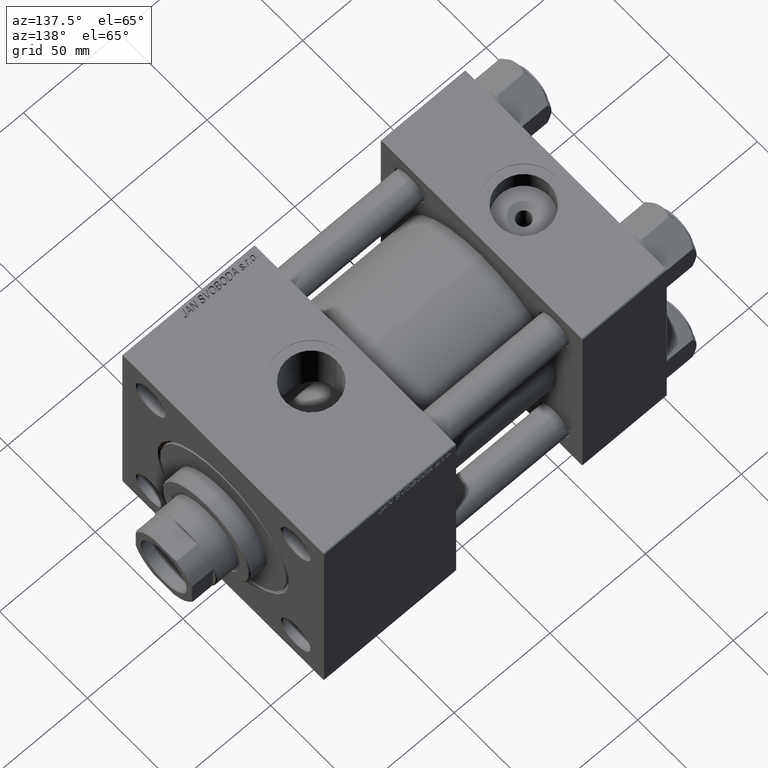
[diagram: clean part render]
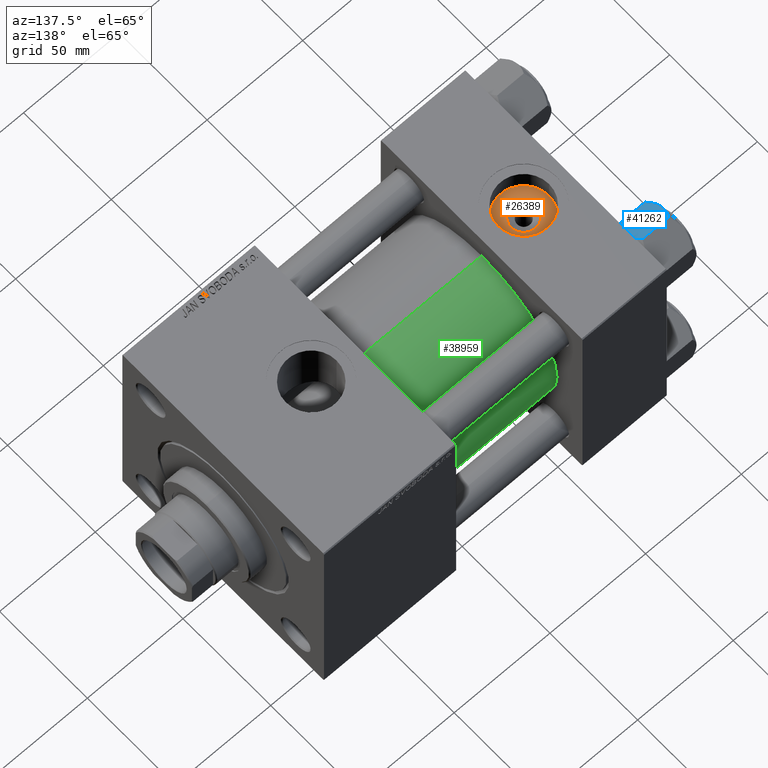
[diagram: same view with three faces highlighted in distinct colors, each labeled with its STEP entity id]
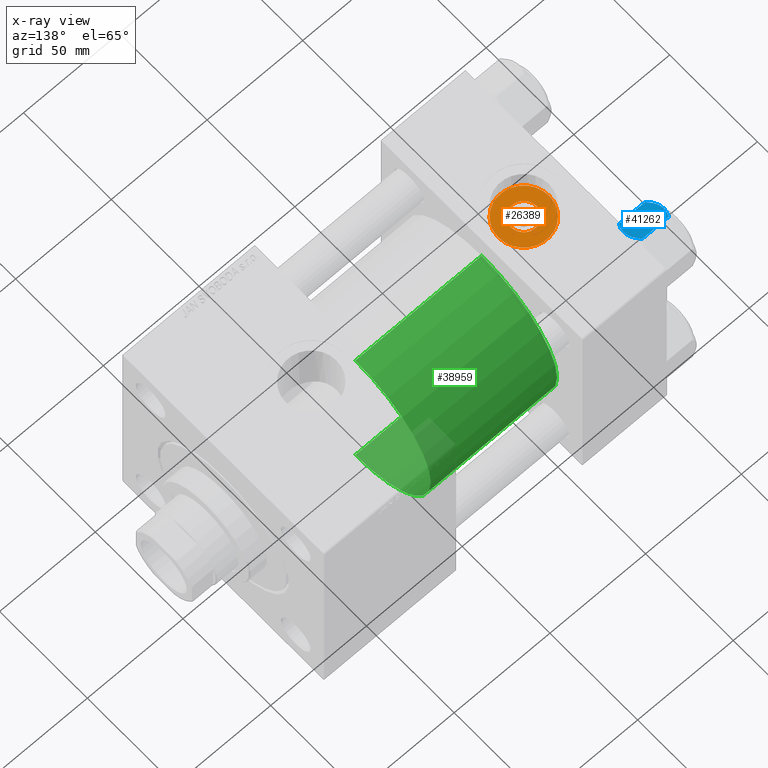
[diagram: x-ray of the same camera — body ghosted, the three highlighted faces saturated]
A machine part, auxiliary view with three faces highlighted in distinct colors.
The next image is the same camera in x-ray (body ghosted, the three faces saturated) — at least one of them is partly hidden behind the body in this view.
Their STEP definitions:

[orange] entity #26389 — the highlighted planar face has unit normal (0, 0, 1).
#1084 = VERTEX_POINT ( 'NONE', #40555 ) ;
#5213 = CARTESIAN_POINT ( 'NONE',  ( 22.00000000000000000, -8.673617379884035472E-15, 46.70000000000000284 ) ) ;
#6455 = EDGE_CURVE ( 'NONE', #48969, #1084, #8358, .T. ) ;
#8358 = CIRCLE ( 'NONE', #50050, 13.22000000000000242 ) ;
#9282 = VERTEX_POINT ( 'NONE', #39625 ) ;
#9893 = CARTESIAN_POINT ( 'NONE',  ( 28.64000000000006096, -8.673617379884035472E-15, 46.70000000000000284 ) ) ;
#10525 = DIRECTION ( 'NONE',  ( 0.000000000000000000, 0.000000000000000000, 1.000000000000000000 ) ) ;
#11581 = ORIENTED_EDGE ( 'NONE', *, *, #25114, .T. ) ;
#12621 = DIRECTION ( 'NONE',  ( -0.000000000000000000, -0.000000000000000000, -1.000000000000000000 ) ) ;
#19298 = CIRCLE ( 'NONE', #38080, 13.22000000000000242 ) ;
#19529 = ORIENTED_EDGE ( 'NONE', *, *, #35854, .T. ) ;
#20878 = EDGE_CURVE ( 'NONE', #1084, #48969, #19298, .T. ) ;
#21511 = FACE_BOUND ( 'NONE', #29384, .T. ) ;
#21755 = DIRECTION ( 'NONE',  ( 1.000000000000000000, 0.000000000000000000, -0.000000000000000000 ) ) ;
#23717 = EDGE_LOOP ( 'NONE', ( #26889, #38781 ) ) ;
#24432 = DIRECTION ( 'NONE',  ( 1.000000000000000000, 0.000000000000000000, 0.000000000000000000 ) ) ;
#24841 = DIRECTION ( 'NONE',  ( 1.000000000000000000, 0.000000000000000000, 0.000000000000000000 ) ) ;
#25095 = CARTESIAN_POINT ( 'NONE',  ( 22.00000000000000000, -8.673617379884035472E-15, 46.70000000000000284 ) ) ;
#25114 = EDGE_CURVE ( 'NONE', #9282, #50049, #47970, .T. ) ;
#25386 = DIRECTION ( 'NONE',  ( 1.000000000000000000, 0.000000000000000000, 0.000000000000000000 ) ) ;
#26374 = CARTESIAN_POINT ( 'NONE',  ( 22.00000000000000000, -8.673617379884035472E-15, 46.70000000000000284 ) ) ;
#26389 = ADVANCED_FACE ( 'NONE', ( #21511, #33773 ), #45809, .T. ) ;
#26889 = ORIENTED_EDGE ( 'NONE', *, *, #6455, .T. ) ;
#28223 = CARTESIAN_POINT ( 'NONE',  ( 22.00000000000000000, -8.673617379884035472E-15, 46.70000000000000284 ) ) ;
#29384 = EDGE_LOOP ( 'NONE', ( #19529, #11581 ) ) ;
#33773 = FACE_OUTER_BOUND ( 'NONE', #23717, .T. ) ;
#34017 = AXIS2_PLACEMENT_3D ( 'NONE', #28223, #12621, #48468 ) ;
#34212 = CARTESIAN_POINT ( 'NONE',  ( 35.21999999999999886, -8.673617379884035472E-15, 46.70000000000000284 ) ) ;
#35716 = AXIS2_PLACEMENT_3D ( 'NONE', #49409, #41216, #21755 ) ;
#35854 = EDGE_CURVE ( 'NONE', #50049, #9282, #44697, .T. ) ;
#36110 = DIRECTION ( 'NONE',  ( -0.000000000000000000, -0.000000000000000000, -1.000000000000000000 ) ) ;
#38080 = AXIS2_PLACEMENT_3D ( 'NONE', #26374, #10525, #25386 ) ;
#38781 = ORIENTED_EDGE ( 'NONE', *, *, #20878, .T. ) ;
#39625 = CARTESIAN_POINT ( 'NONE',  ( 15.35999999999993548, -7.860451905250184685E-15, 46.70000000000000284 ) ) ;
#40555 = CARTESIAN_POINT ( 'NONE',  ( 8.779999999999994031, -7.054634311411234321E-15, 46.70000000000000284 ) ) ;
#41216 = DIRECTION ( 'NONE',  ( 0.000000000000000000, 0.000000000000000000, 1.000000000000000000 ) ) ;
#43055 = AXIS2_PLACEMENT_3D ( 'NONE', #25095, #36110, #24841 ) ;
#44697 = CIRCLE ( 'NONE', #43055, 6.640000000000062741 ) ;
#45809 = PLANE ( 'NONE',  #35716 ) ;
#47970 = CIRCLE ( 'NONE', #34017, 6.640000000000062741 ) ;
#47986 = DIRECTION ( 'NONE',  ( 0.000000000000000000, 0.000000000000000000, 1.000000000000000000 ) ) ;
#48468 = DIRECTION ( 'NONE',  ( 1.000000000000000000, 0.000000000000000000, 0.000000000000000000 ) ) ;
#48969 = VERTEX_POINT ( 'NONE', #34212 ) ;
#49409 = CARTESIAN_POINT ( 'NONE',  ( 22.00000000000000000, -8.673617379884035472E-15, 46.70000000000000284 ) ) ;
#50049 = VERTEX_POINT ( 'NONE', #9893 ) ;
#50050 = AXIS2_PLACEMENT_3D ( 'NONE', #5213, #47986, #24432 ) ;

[blue] entity #41262 — the highlighted planar face has unit normal (-0, 0.5, -0.866).
#446 = CARTESIAN_POINT ( 'NONE',  ( 15.52647173767732980, -0.1619957022865074481, -2.000000000000000000 ) ) ;
#1268 = CARTESIAN_POINT ( 'NONE',  ( 14.31545111198821019, -2.259544954993912391, -17.08577173959730544 ) ) ;
#1336 = ORIENTED_EDGE ( 'NONE', *, *, #39264, .F. ) ;
#1543 = CARTESIAN_POINT ( 'NONE',  ( 14.30591678195076355, -2.276058899034900662, -0.9473872146228133895 ) ) ;
#1723 = CARTESIAN_POINT ( 'NONE',  ( 11.04378428799594936, -7.926238119586006547, -0.05089381635301404999 ) ) ;
#1939 = DIRECTION ( 'NONE',  ( -0.000000000000000000, -0.000000000000000000, 1.000000000000000000 ) ) ;
#3257 = DIRECTION ( 'NONE',  ( -0.8660254037844385966, 0.5000000000000003331, 0.000000000000000000 ) ) ;
#4788 = VERTEX_POINT ( 'NONE', #38975 ) ;
#4986 = VERTEX_POINT ( 'NONE', #13024 ) ;
#5560 = CARTESIAN_POINT ( 'NONE',  ( 9.114548888011784200, -11.26777185211904353, -0.9142282604026938930 ) ) ;
#5802 = CARTESIAN_POINT ( 'NONE',  ( 7.903528262322685904, -13.36532110482641400, -16.00000000000000000 ) ) ;
#5878 = CARTESIAN_POINT ( 'NONE',  ( 12.37702203890362540, -5.617002596445055396, 1.097754699641572845E-15 ) ) ;
#5919 = B_SPLINE_CURVE_WITH_KNOTS ( 'NONE', 3,
 ( #19060, #11138, #15232, #25747, #38017, #10889, #49307, #30842 ),
 .UNSPECIFIED., .F., .F.,
 ( 4, 2, 2, 4 ),
 ( 0.007890825462474406610, 0.01181022244528550855, 0.01376992093669106125, 0.01572961942809661395 ),
 .UNSPECIFIED. ) ;
#5931 = ORIENTED_EDGE ( 'NONE', *, *, #23988, .F. ) ;
#6778 = LINE ( 'NONE', #34674, #12698 ) ;
#7046 = EDGE_CURVE ( 'NONE', #47781, #9503, #5919, .T. ) ;
#7096 = LINE ( 'NONE', #35451, #43159 ) ;
#8958 = CARTESIAN_POINT ( 'NONE',  ( 15.52647173767731736, -0.1619957022865265162, -16.00000000000000000 ) ) ;
#9221 = CARTESIAN_POINT ( 'NONE',  ( 11.71500000000000341, -6.763658403556471299, 0.000000000000000000 ) ) ;
#9503 = VERTEX_POINT ( 'NONE', #5802 ) ;
#10442 = VECTOR ( 'NONE', #28947, 1000.000000000000114 ) ;
#10889 = CARTESIAN_POINT ( 'NONE',  ( 8.506059550806629233, -12.32170630002228684, -16.56553707812499709 ) ) ;
#10977 = CARTESIAN_POINT ( 'NONE',  ( 7.903528262322674358, -13.36532110482643176, -2.000000000000000000 ) ) ;
#11125 = DIRECTION ( 'NONE',  ( -0.5000000000000002220, -0.8660254037844384856, 0.000000000000000000 ) ) ;
#11138 = CARTESIAN_POINT ( 'NONE',  ( 11.05297796109638142, -7.910314210667883650, -17.99999999999999289 ) ) ;
#11442 = EDGE_LOOP ( 'NONE', ( #48331, #44080, #5931, #47942, #15064, #1336, #33290, #41447, #41042, #29758 ) ) ;
#11919 = CARTESIAN_POINT ( 'NONE',  ( 15.62000000000000455, -1.379485931020374819E-15, -16.00000000000000000 ) ) ;
#12155 = DIRECTION ( 'NONE',  ( -0.5000000000000002220, -0.8660254037844384856, 0.000000000000000000 ) ) ;
#12698 = VECTOR ( 'NONE', #11125, 1000.000000000000114 ) ;
#13024 = CARTESIAN_POINT ( 'NONE',  ( 11.71500000000000341, -6.763658403556471299, 0.000000000000000000 ) ) ;
#15064 = ORIENTED_EDGE ( 'NONE', *, *, #36204, .F. ) ;
#15228 = B_SPLINE_CURVE_WITH_KNOTS ( 'NONE', 3,
 ( #40634, #20676, #5560, #32452, #28858, #1723, #17329, #36301 ),
 .UNSPECIFIED., .F., .F.,
 ( 4, 2, 2, 4 ),
 ( 4.472842641876105202E-07, 0.003945636373369308322, 0.005918230917921867007, 0.007890825462474425692 ),
 .UNSPECIFIED. ) ;
#15232 = CARTESIAN_POINT ( 'NONE',  ( 10.40215497533437627, -9.037572688741342120, -17.80281335400753662 ) ) ;
#15917 = B_SPLINE_CURVE_WITH_KNOTS ( 'NONE', 3,
 ( #9221, #5878, #17144, #40954, #1543, #24344, #39947, #28922 ),
 .UNSPECIFIED., .F., .F.,
 ( 4, 2, 2, 4 ),
 ( 0.007890825462474425692, 0.01181022244528553977, 0.01376992093669109768, 0.01572961942809665559 ),
 .UNSPECIFIED. ) ;
#16636 = CARTESIAN_POINT ( 'NONE',  ( 11.71499999999999453, -6.763658403556466858, -18.00000000000000000 ) ) ;
#17144 = CARTESIAN_POINT ( 'NONE',  ( 13.02784502466562699, -4.489744118371590709, -0.1971866459924545845 ) ) ;
#17329 = CARTESIAN_POINT ( 'NONE',  ( 11.38181071908714515, -7.340759166634874155, 7.741881137904304113E-16 ) ) ;
#18418 = EDGE_CURVE ( 'NONE', #9503, #50308, #6778, .T. ) ;
#18421 = CARTESIAN_POINT ( 'NONE',  ( 15.62000000000000455, -1.379485931020374819E-15, -1.999999999999998224 ) ) ;
#19060 = CARTESIAN_POINT ( 'NONE',  ( 11.71499999999999453, -6.763658403556466858, -18.00000000000000000 ) ) ;
#20662 = VERTEX_POINT ( 'NONE', #446 ) ;
#20676 = CARTESIAN_POINT ( 'NONE',  ( 8.502393313253756801, -12.32805640973649197, -1.411989271640069044 ) ) ;
#22460 = PLANE ( 'NONE',  #48135 ) ;
#22535 = DIRECTION ( 'NONE',  ( -0.000000000000000000, -0.000000000000000000, 1.000000000000000000 ) ) ;
#22631 = EDGE_CURVE ( 'NONE', #50308, #4788, #37016, .T. ) ;
#22767 = CARTESIAN_POINT ( 'NONE',  ( 15.62000000000000455, -1.379485931020374819E-15, -1.999999999999998224 ) ) ;
#22905 = VERTEX_POINT ( 'NONE', #41040 ) ;
#23272 = CARTESIAN_POINT ( 'NONE',  ( 15.62000000000000455, -1.379485931020374819E-15, -1.999999999999998224 ) ) ;
#23988 = EDGE_CURVE ( 'NONE', #20662, #36884, #38131, .T. ) ;
#24328 = CARTESIAN_POINT ( 'NONE',  ( 13.36540581434586983, -3.905071680002335288, -17.61639331488792948 ) ) ;
#24344 = CARTESIAN_POINT ( 'NONE',  ( 14.92394044919338292, -1.205610507090636219, -1.434462921875003349 ) ) ;
#25331 = CARTESIAN_POINT ( 'NONE',  ( 11.71499999999999453, -6.763658403556466858, -18.00000000000000000 ) ) ;
#25747 = CARTESIAN_POINT ( 'NONE',  ( 9.439480280627268627, -10.70497417113491245, -17.26828031537187513 ) ) ;
#25810 = CARTESIAN_POINT ( 'NONE',  ( 15.62000000000000455, -1.379485931020374819E-15, -18.00000000000000000 ) ) ;
#26299 = DIRECTION ( 'NONE',  ( -0.5000000000000002220, -0.8660254037844384856, 0.000000000000000000 ) ) ;
#26384 = LINE ( 'NONE', #34325, #26591 ) ;
#26591 = VECTOR ( 'NONE', #22535, 1000.000000000000000 ) ;
#27276 = VERTEX_POINT ( 'NONE', #10977 ) ;
#28858 = CARTESIAN_POINT ( 'NONE',  ( 10.38662926516871998, -9.064464007571853443, -0.2430846701012968625 ) ) ;
#28922 = CARTESIAN_POINT ( 'NONE',  ( 15.52647173767732980, -0.1619957022865074481, -2.000000000000000000 ) ) ;
#28947 = DIRECTION ( 'NONE',  ( 0.5000000000000002220, 0.8660254037844384856, -0.000000000000000000 ) ) ;
#29758 = ORIENTED_EDGE ( 'NONE', *, *, #30094, .F. ) ;
#30094 = EDGE_CURVE ( 'NONE', #22905, #47781, #39090, .T. ) ;
#30842 = CARTESIAN_POINT ( 'NONE',  ( 7.903528262322685904, -13.36532110482641400, -16.00000000000000000 ) ) ;
#31545 = VECTOR ( 'NONE', #49669, 1000.000000000000114 ) ;
#32160 = CARTESIAN_POINT ( 'NONE',  ( 7.810000000000002274, -13.52731680711293372, -18.00000000000000000 ) ) ;
#32452 = CARTESIAN_POINT ( 'NONE',  ( 10.06459418565412456, -9.622245127110611307, -0.3836066851120584209 ) ) ;
#33001 = CARTESIAN_POINT ( 'NONE',  ( 13.04337073483127796, -4.462852799541095372, -17.75691532989869614 ) ) ;
#33066 = EDGE_CURVE ( 'NONE', #50067, #36884, #26384, .T. ) ;
#33290 = ORIENTED_EDGE ( 'NONE', *, *, #22631, .F. ) ;
#34325 = CARTESIAN_POINT ( 'NONE',  ( 15.62000000000000455, -1.379485931020374819E-15, -18.00000000000000000 ) ) ;
#34674 = CARTESIAN_POINT ( 'NONE',  ( 15.62000000000000455, -1.379485931020374819E-15, -16.00000000000000000 ) ) ;
#35451 = CARTESIAN_POINT ( 'NONE',  ( 15.62000000000000455, -1.379485931020374819E-15, -16.00000000000000000 ) ) ;
#35853 = EDGE_CURVE ( 'NONE', #4986, #20662, #15917, .T. ) ;
#36204 = EDGE_CURVE ( 'NONE', #27276, #4986, #15228, .T. ) ;
#36301 = CARTESIAN_POINT ( 'NONE',  ( 11.71500000000000341, -6.763658403556471299, 0.000000000000000000 ) ) ;
#36884 = VERTEX_POINT ( 'NONE', #23272 ) ;
#37016 = LINE ( 'NONE', #32160, #44707 ) ;
#38017 = CARTESIAN_POINT ( 'NONE',  ( 9.124083218049248600, -11.25125790807802595, -17.05261278537718184 ) ) ;
#38131 = LINE ( 'NONE', #22767, #31545 ) ;
#38699 = EDGE_CURVE ( 'NONE', #50067, #22905, #7096, .T. ) ;
#38975 = CARTESIAN_POINT ( 'NONE',  ( 7.810000000000002274, -13.52731680711293372, -1.999999999999998224 ) ) ;
#39090 = B_SPLINE_CURVE_WITH_KNOTS ( 'NONE', 3,
 ( #8958, #44531, #1268, #24328, #33001, #40430, #44035, #25331 ),
 .UNSPECIFIED., .F., .F.,
 ( 4, 2, 2, 4 ),
 ( 4.472842641925296111E-07, 0.003945636373369297914, 0.005918230917921852262, 0.007890825462474406610 ),
 .UNSPECIFIED. ) ;
#39264 = EDGE_CURVE ( 'NONE', #4788, #27276, #45579, .T. ) ;
#39947 = CARTESIAN_POINT ( 'NONE',  ( 15.22736220980736022, -0.6800686015852294153, -1.706311779141445495 ) ) ;
#40430 = CARTESIAN_POINT ( 'NONE',  ( 12.38621571200405214, -5.601078687526937827, -17.94910618364697186 ) ) ;
#40634 = CARTESIAN_POINT ( 'NONE',  ( 7.903528262322674358, -13.36532110482643176, -2.000000000000000000 ) ) ;
#40954 = CARTESIAN_POINT ( 'NONE',  ( 13.99051971937274352, -2.822342635978011938, -0.7317196846281139866 ) ) ;
#41040 = CARTESIAN_POINT ( 'NONE',  ( 15.52647173767731736, -0.1619957022865265162, -16.00000000000000000 ) ) ;
#41042 = ORIENTED_EDGE ( 'NONE', *, *, #7046, .F. ) ;
#41262 = ADVANCED_FACE ( 'NONE', ( #48621 ), #22460, .F. ) ;
#41447 = ORIENTED_EDGE ( 'NONE', *, *, #18418, .F. ) ;
#43159 = VECTOR ( 'NONE', #12155, 1000.000000000000114 ) ;
#44035 = CARTESIAN_POINT ( 'NONE',  ( 12.04818928091285635, -6.186557640478069331, -17.99999999999998224 ) ) ;
#44080 = ORIENTED_EDGE ( 'NONE', *, *, #33066, .T. ) ;
#44531 = CARTESIAN_POINT ( 'NONE',  ( 14.92760668674624291, -1.199260397376471499, -16.58801072835992940 ) ) ;
#44707 = VECTOR ( 'NONE', #1939, 1000.000000000000000 ) ;
#44908 = CARTESIAN_POINT ( 'NONE',  ( 7.810000000000002274, -13.52731680711293372, -16.00000000000000000 ) ) ;
#45579 = LINE ( 'NONE', #18421, #10442 ) ;
#47781 = VERTEX_POINT ( 'NONE', #16636 ) ;
#47942 = ORIENTED_EDGE ( 'NONE', *, *, #35853, .F. ) ;
#48135 = AXIS2_PLACEMENT_3D ( 'NONE', #25810, #3257, #26299 ) ;
#48331 = ORIENTED_EDGE ( 'NONE', *, *, #38699, .F. ) ;
#48621 = FACE_OUTER_BOUND ( 'NONE', #11442, .T. ) ;
#49307 = CARTESIAN_POINT ( 'NONE',  ( 8.202637790192655487, -12.84724820552769309, -16.29368822085855584 ) ) ;
#49669 = DIRECTION ( 'NONE',  ( 0.5000000000000002220, 0.8660254037844384856, -0.000000000000000000 ) ) ;
#50067 = VERTEX_POINT ( 'NONE', #11919 ) ;
#50308 = VERTEX_POINT ( 'NONE', #44908 ) ;

[green] entity #38959 — the highlighted cylindrical surface (partial cylindrical patch) has radius 43 mm, axis along (-1, -0, -0).
#255 = CARTESIAN_POINT ( 'NONE',  ( 110.0000000000000000, -2.602085213965210642E-15, 0.000000000000000000 ) ) ;
#1045 = VERTEX_POINT ( 'NONE', #48256 ) ;
#2214 = EDGE_CURVE ( 'NONE', #1045, #27559, #42551, .T. ) ;
#3937 = CARTESIAN_POINT ( 'NONE',  ( 44.00000000000000000, -2.602085213965210642E-15, 43.00000000000000000 ) ) ;
#4061 = LINE ( 'NONE', #12257, #11168 ) ;
#4918 = CARTESIAN_POINT ( 'NONE',  ( 110.0000000000000000, 2.663896022368408223E-15, -43.00000000000000000 ) ) ;
#8018 = VERTEX_POINT ( 'NONE', #4918 ) ;
#8188 = DIRECTION ( 'NONE',  ( 0.000000000000000000, 0.000000000000000000, -1.000000000000000000 ) ) ;
#8905 = AXIS2_PLACEMENT_3D ( 'NONE', #255, #15866, #8188 ) ;
#10062 = CYLINDRICAL_SURFACE ( 'NONE', #44799, 43.00000000000000000 ) ;
#11168 = VECTOR ( 'NONE', #26852, 1000.000000000000000 ) ;
#12257 = CARTESIAN_POINT ( 'NONE',  ( 110.0000000000000000, 2.663896022368408223E-15, -43.00000000000000000 ) ) ;
#12881 = DIRECTION ( 'NONE',  ( 0.000000000000000000, 0.000000000000000000, 1.000000000000000000 ) ) ;
#13141 = CARTESIAN_POINT ( 'NONE',  ( 110.0000000000000000, -2.602085213965210642E-15, 43.00000000000000000 ) ) ;
#13705 = ORIENTED_EDGE ( 'NONE', *, *, #15476, .F. ) ;
#14596 = CIRCLE ( 'NONE', #8905, 43.00000000000000000 ) ;
#15476 = EDGE_CURVE ( 'NONE', #16187, #27559, #16220, .T. ) ;
#15692 = ORIENTED_EDGE ( 'NONE', *, *, #41160, .F. ) ;
#15866 = DIRECTION ( 'NONE',  ( 1.000000000000000000, 0.000000000000000000, 0.000000000000000000 ) ) ;
#16187 = VERTEX_POINT ( 'NONE', #32636 ) ;
#16220 = LINE ( 'NONE', #13141, #34657 ) ;
#19487 = EDGE_LOOP ( 'NONE', ( #15692, #32799, #21581, #13705 ) ) ;
#21327 = CARTESIAN_POINT ( 'NONE',  ( 110.0000000000000000, -2.602085213965210642E-15, 0.000000000000000000 ) ) ;
#21581 = ORIENTED_EDGE ( 'NONE', *, *, #2214, .T. ) ;
#25678 = DIRECTION ( 'NONE',  ( 0.000000000000000000, 0.000000000000000000, 1.000000000000000000 ) ) ;
#26852 = DIRECTION ( 'NONE',  ( -1.000000000000000000, -0.000000000000000000, -0.000000000000000000 ) ) ;
#27559 = VERTEX_POINT ( 'NONE', #3937 ) ;
#30267 = FACE_OUTER_BOUND ( 'NONE', #19487, .T. ) ;
#32636 = CARTESIAN_POINT ( 'NONE',  ( 110.0000000000000000, -2.602085213965210642E-15, 43.00000000000000000 ) ) ;
#32799 = ORIENTED_EDGE ( 'NONE', *, *, #36121, .T. ) ;
#34657 = VECTOR ( 'NONE', #35940, 1000.000000000000000 ) ;
#35940 = DIRECTION ( 'NONE',  ( -1.000000000000000000, -0.000000000000000000, -0.000000000000000000 ) ) ;
#36121 = EDGE_CURVE ( 'NONE', #8018, #1045, #4061, .T. ) ;
#37459 = DIRECTION ( 'NONE',  ( -1.000000000000000000, -0.000000000000000000, -0.000000000000000000 ) ) ;
#38959 = ADVANCED_FACE ( 'NONE', ( #30267 ), #10062, .T. ) ;
#41160 = EDGE_CURVE ( 'NONE', #8018, #16187, #14596, .T. ) ;
#41713 = AXIS2_PLACEMENT_3D ( 'NONE', #43855, #43605, #12881 ) ;
#42551 = CIRCLE ( 'NONE', #41713, 43.00000000000000000 ) ;
#43605 = DIRECTION ( 'NONE',  ( 1.000000000000000000, -0.000000000000000000, 0.000000000000000000 ) ) ;
#43855 = CARTESIAN_POINT ( 'NONE',  ( 44.00000000000000000, -2.602085213965210642E-15, 0.000000000000000000 ) ) ;
#44799 = AXIS2_PLACEMENT_3D ( 'NONE', #21327, #37459, #25678 ) ;
#48256 = CARTESIAN_POINT ( 'NONE',  ( 44.00000000000000000, 2.663896022368408223E-15, -43.00000000000000000 ) ) ;